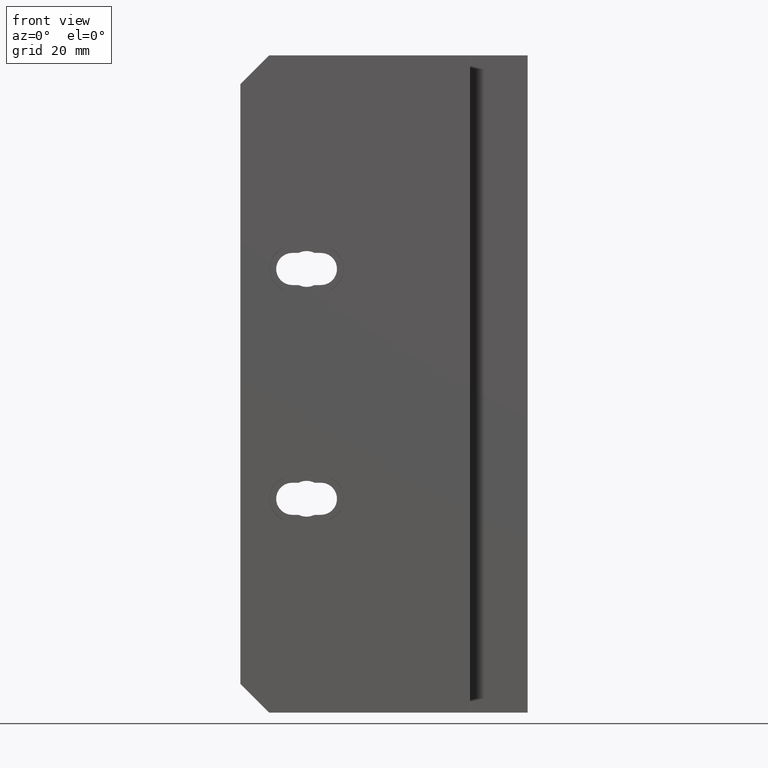
[diagram: clean part render]
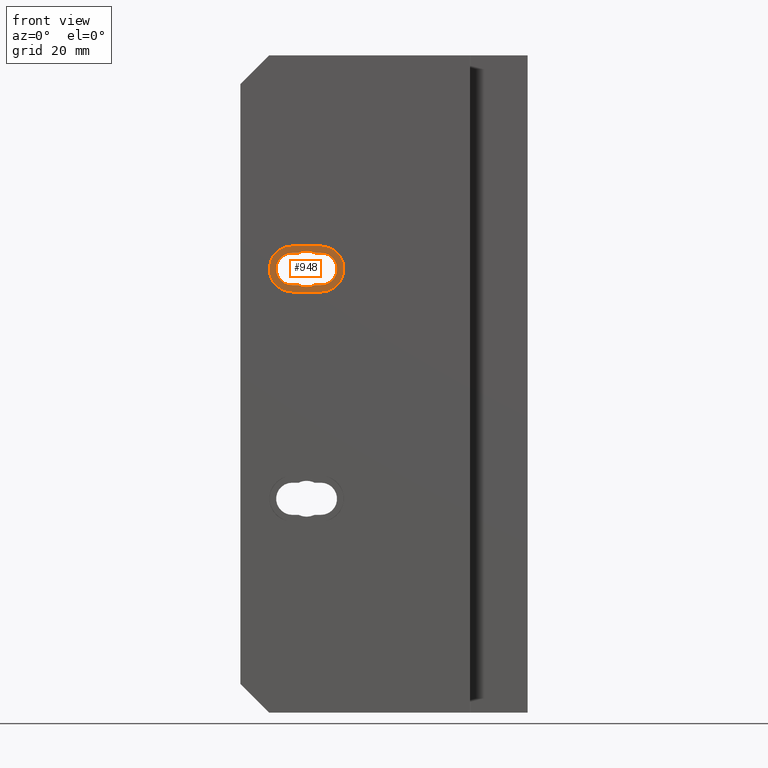
[diagram: same view with one face highlighted and labeled with its STEP entity id]
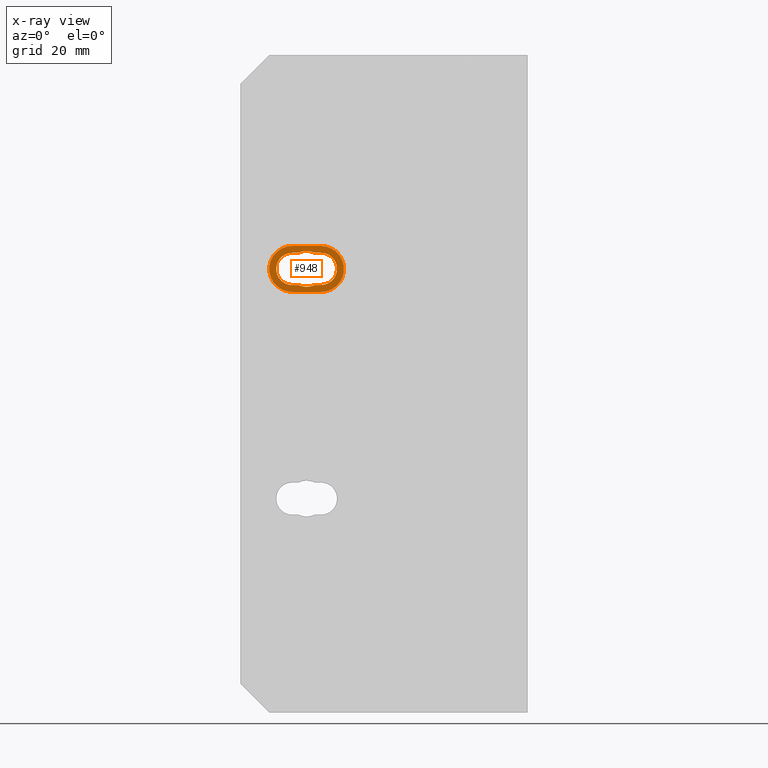
[diagram: x-ray of the same camera — body ghosted, the highlighted face saturated]
A machine part, front view. The second image highlights one B-rep face of the part: STEP entity #948.
The next image is the same camera in x-ray: the body ghosted, the highlighted face saturated — about 0% of this face is hidden behind the body in this view.
In plain terms, the highlighted planar face has unit normal (0, -1, 0).
Its self-contained STEP definition (entity closure, byte-faithful):
#8 = EDGE_CURVE ( 'NONE', #961, #811, #410, .T. ) ;
#10 = LINE ( 'NONE', #654, #2651 ) ;
#38 = CARTESIAN_POINT ( 'NONE',  ( -2.048734939028663800, 0.7000000000000000700, -1.718999999999444700 ) ) ;
#39 = ORIENTED_EDGE ( 'NONE', *, *, #1181, .F. ) ;
#41 = DIRECTION ( 'NONE',  ( 0.0000000000000000000, -0.0000000000000000000, -1.000000000000000000 ) ) ;
#71 = DIRECTION ( 'NONE',  ( 0.0000000000000000000, 0.0000000000000000000, -1.000000000000000000 ) ) ;
#92 = CARTESIAN_POINT ( 'NONE',  ( -2.048734939028663800, 0.7000000000000000700, -1.998999999999445000 ) ) ;
#123 = AXIS2_PLACEMENT_3D ( 'NONE', #468, #2784, #789 ) ;
#165 = ORIENTED_EDGE ( 'NONE', *, *, #1259, .T. ) ;
#188 = DIRECTION ( 'NONE',  ( 0.0000000000000000000, 0.0000000000000000000, -1.000000000000000000 ) ) ;
#195 = DIRECTION ( 'NONE',  ( -1.000000000000000000, -0.0000000000000000000, -0.0000000000000000000 ) ) ;
#228 = EDGE_CURVE ( 'NONE', #811, #573, #1744, .T. ) ;
#257 = EDGE_CURVE ( 'NONE', #1636, #3344, #1637, .T. ) ;
#298 = CIRCLE ( 'NONE', #123, 0.2000000000000000400 ) ;
#304 = CARTESIAN_POINT ( 'NONE',  ( -2.048734939028663800, 0.7000000000000000700, -1.858999999999444900 ) ) ;
#383 = CARTESIAN_POINT ( 'NONE',  ( -2.048734939028663800, 0.7000000000000000700, -1.998999999999445000 ) ) ;
#410 = CIRCLE ( 'NONE', #3331, 0.1562499999999997200 ) ;
#440 = DIRECTION ( 'NONE',  ( -0.0000000000000000000, 1.000000000000000000, -0.0000000000000000000 ) ) ;
#468 = CARTESIAN_POINT ( 'NONE',  ( -1.798734939028664200, 0.7000000000000000700, -1.858999999999444900 ) ) ;
#555 = AXIS2_PLACEMENT_3D ( 'NONE', #4159, #2152, #188 ) ;
#573 = VERTEX_POINT ( 'NONE', #3737 ) ;
#595 = CARTESIAN_POINT ( 'NONE',  ( -1.923734939028664000, 0.7000000000000000700, -1.858999999999444900 ) ) ;
#629 = LINE ( 'NONE', #38, #4042 ) ;
#637 = DIRECTION ( 'NONE',  ( 0.0000000000000000000, 0.0000000000000000000, -1.000000000000000000 ) ) ;
#654 = CARTESIAN_POINT ( 'NONE',  ( -2.048734939028663800, 0.7000000000000000700, -1.998999999999445000 ) ) ;
#789 = DIRECTION ( 'NONE',  ( 0.0000000000000000000, 0.0000000000000000000, -1.000000000000000000 ) ) ;
#811 = VERTEX_POINT ( 'NONE', #1301 ) ;
#854 = AXIS2_PLACEMENT_3D ( 'NONE', #1513, #3839, #1845 ) ;
#903 = DIRECTION ( 'NONE',  ( 1.000000000000000000, 0.0000000000000000000, 0.0000000000000000000 ) ) ;
#948 = ADVANCED_FACE ( 'NONE', ( #1629, #3404 ), #4006, .T. ) ;
#959 = DIRECTION ( 'NONE',  ( 1.000000000000000000, 0.0000000000000000000, 0.0000000000000000000 ) ) ;
#961 = VERTEX_POINT ( 'NONE', #2696 ) ;
#990 = AXIS2_PLACEMENT_3D ( 'NONE', #2411, #440, #2751 ) ;
#1019 = VERTEX_POINT ( 'NONE', #92 ) ;
#1128 = DIRECTION ( 'NONE',  ( 0.0000000000000000000, 0.0000000000000000000, -1.000000000000000000 ) ) ;
#1173 = ORIENTED_EDGE ( 'NONE', *, *, #1912, .T. ) ;
#1181 = EDGE_CURVE ( 'NONE', #1590, #1597, #3862, .T. ) ;
#1259 = EDGE_CURVE ( 'NONE', #2505, #573, #1789, .T. ) ;
#1301 = CARTESIAN_POINT ( 'NONE',  ( -1.923734939028664000, 0.7000000000000000700, -1.702749999999445100 ) ) ;
#1348 = EDGE_LOOP ( 'NONE', ( #3869, #3861, #1764, #3671, #39, #1173, #1591, #165, #1751 ) ) ;
#1355 = LINE ( 'NONE', #2938, #3015 ) ;
#1359 = CARTESIAN_POINT ( 'NONE',  ( -2.048734939028663800, 0.7000000000000000700, -1.858999999999444900 ) ) ;
#1377 = EDGE_CURVE ( 'NONE', #3161, #1636, #298, .T. ) ;
#1469 = EDGE_CURVE ( 'NONE', #1019, #2505, #3511, .T. ) ;
#1472 = DIRECTION ( 'NONE',  ( 0.0000000000000000000, -1.000000000000000000, 0.0000000000000000000 ) ) ;
#1474 = CARTESIAN_POINT ( 'NONE',  ( -1.798734939028664200, 0.7000000000000000700, -1.998999999999445000 ) ) ;
#1513 = CARTESIAN_POINT ( 'NONE',  ( -1.923734939028664000, 0.7000000000000000700, -1.858999999999444900 ) ) ;
#1562 = CARTESIAN_POINT ( 'NONE',  ( -1.993118384460552500, 0.7000000000000000700, -1.998999999999445000 ) ) ;
#1584 = ORIENTED_EDGE ( 'NONE', *, *, #2349, .T. ) ;
#1590 = VERTEX_POINT ( 'NONE', #1562 ) ;
#1591 = ORIENTED_EDGE ( 'NONE', *, *, #1469, .T. ) ;
#1597 = VERTEX_POINT ( 'NONE', #2906 ) ;
#1629 = FACE_BOUND ( 'NONE', #1348, .T. ) ;
#1636 = VERTEX_POINT ( 'NONE', #2276 ) ;
#1637 = LINE ( 'NONE', #2165, #4194 ) ;
#1744 = CIRCLE ( 'NONE', #3772, 0.1562499999999997200 ) ;
#1751 = ORIENTED_EDGE ( 'NONE', *, *, #228, .F. ) ;
#1764 = ORIENTED_EDGE ( 'NONE', *, *, #3444, .T. ) ;
#1789 = LINE ( 'NONE', #2895, #3461 ) ;
#1845 = DIRECTION ( 'NONE',  ( 0.0000000000000000000, 0.0000000000000000000, -1.000000000000000000 ) ) ;
#1912 = EDGE_CURVE ( 'NONE', #1590, #1019, #3032, .T. ) ;
#2017 = DIRECTION ( 'NONE',  ( 0.0000000000000000000, -1.000000000000000000, 0.0000000000000000000 ) ) ;
#2035 = DIRECTION ( 'NONE',  ( 0.0000000000000000000, -1.000000000000000000, 0.0000000000000000000 ) ) ;
#2139 = VECTOR ( 'NONE', #4057, 39.37007874015748100 ) ;
#2152 = DIRECTION ( 'NONE',  ( -0.0000000000000000000, 1.000000000000000000, -0.0000000000000000000 ) ) ;
#2165 = CARTESIAN_POINT ( 'NONE',  ( -2.048734939028663800, 0.7000000000000000700, -1.658999999999444900 ) ) ;
#2167 = ORIENTED_EDGE ( 'NONE', *, *, #3771, .T. ) ;
#2276 = CARTESIAN_POINT ( 'NONE',  ( -1.798734939028664200, 0.7000000000000000700, -1.658999999999444900 ) ) ;
#2348 = CARTESIAN_POINT ( 'NONE',  ( -2.048734939028663800, 0.7000000000000000700, -1.658999999999444900 ) ) ;
#2349 = EDGE_CURVE ( 'NONE', #2642, #3161, #1355, .T. ) ;
#2359 = ORIENTED_EDGE ( 'NONE', *, *, #1377, .T. ) ;
#2411 = CARTESIAN_POINT ( 'NONE',  ( -1.798734939028664200, 0.7000000000000000700, -1.858999999999444900 ) ) ;
#2505 = VERTEX_POINT ( 'NONE', #3712 ) ;
#2617 = DIRECTION ( 'NONE',  ( 0.0000000000000000000, -1.000000000000000000, 0.0000000000000000000 ) ) ;
#2642 = VERTEX_POINT ( 'NONE', #3443 ) ;
#2651 = VECTOR ( 'NONE', #2973, 39.37007874015748100 ) ;
#2686 = DIRECTION ( 'NONE',  ( 1.000000000000000000, 0.0000000000000000000, 0.0000000000000000000 ) ) ;
#2687 = VERTEX_POINT ( 'NONE', #1474 ) ;
#2696 = CARTESIAN_POINT ( 'NONE',  ( -1.854351493596775500, 0.7000000000000000700, -1.718999999999444700 ) ) ;
#2709 = EDGE_LOOP ( 'NONE', ( #2167, #1584, #2359, #3635 ) ) ;
#2751 = DIRECTION ( 'NONE',  ( 0.0000000000000000000, 0.0000000000000000000, -1.000000000000000000 ) ) ;
#2784 = DIRECTION ( 'NONE',  ( 0.0000000000000000000, -1.000000000000000000, 0.0000000000000000000 ) ) ;
#2869 = EDGE_CURVE ( 'NONE', #2687, #1597, #10, .T. ) ;
#2895 = CARTESIAN_POINT ( 'NONE',  ( -2.048734939028663800, 0.7000000000000000700, -1.718999999999444700 ) ) ;
#2906 = CARTESIAN_POINT ( 'NONE',  ( -1.854351493596775500, 0.7000000000000000700, -1.998999999999445000 ) ) ;
#2938 = CARTESIAN_POINT ( 'NONE',  ( -2.048734939028663800, 0.7000000000000000700, -2.058999999999445100 ) ) ;
#2973 = DIRECTION ( 'NONE',  ( -1.000000000000000000, 0.0000000000000000000, 0.0000000000000000000 ) ) ;
#2991 = AXIS2_PLACEMENT_3D ( 'NONE', #304, #2617, #637 ) ;
#3015 = VECTOR ( 'NONE', #959, 39.37007874015748100 ) ;
#3032 = LINE ( 'NONE', #383, #2139 ) ;
#3066 = CIRCLE ( 'NONE', #990, 0.1400000000000001500 ) ;
#3161 = VERTEX_POINT ( 'NONE', #3211 ) ;
#3211 = CARTESIAN_POINT ( 'NONE',  ( -1.798734939028664200, 0.7000000000000000700, -2.058999999999445100 ) ) ;
#3330 = EDGE_CURVE ( 'NONE', #961, #3886, #629, .T. ) ;
#3331 = AXIS2_PLACEMENT_3D ( 'NONE', #4028, #2035, #71 ) ;
#3338 = CARTESIAN_POINT ( 'NONE',  ( -1.798734939028664200, 0.7000000000000000700, -1.718999999999444700 ) ) ;
#3344 = VERTEX_POINT ( 'NONE', #2348 ) ;
#3404 = FACE_OUTER_BOUND ( 'NONE', #2709, .T. ) ;
#3443 = CARTESIAN_POINT ( 'NONE',  ( -2.048734939028663800, 0.7000000000000000700, -2.058999999999445100 ) ) ;
#3444 = EDGE_CURVE ( 'NONE', #3886, #2687, #3066, .T. ) ;
#3461 = VECTOR ( 'NONE', #903, 39.37007874015748100 ) ;
#3511 = CIRCLE ( 'NONE', #555, 0.1400000000000001500 ) ;
#3577 = CIRCLE ( 'NONE', #2991, 0.2000000000000000400 ) ;
#3635 = ORIENTED_EDGE ( 'NONE', *, *, #257, .T. ) ;
#3671 = ORIENTED_EDGE ( 'NONE', *, *, #2869, .T. ) ;
#3712 = CARTESIAN_POINT ( 'NONE',  ( -2.048734939028663800, 0.7000000000000000700, -1.718999999999444700 ) ) ;
#3737 = CARTESIAN_POINT ( 'NONE',  ( -1.993118384460552500, 0.7000000000000000700, -1.718999999999444700 ) ) ;
#3771 = EDGE_CURVE ( 'NONE', #3344, #2642, #3577, .T. ) ;
#3772 = AXIS2_PLACEMENT_3D ( 'NONE', #595, #1472, #1128 ) ;
#3839 = DIRECTION ( 'NONE',  ( 0.0000000000000000000, -1.000000000000000000, 0.0000000000000000000 ) ) ;
#3861 = ORIENTED_EDGE ( 'NONE', *, *, #3330, .T. ) ;
#3862 = CIRCLE ( 'NONE', #854, 0.1562499999999997200 ) ;
#3869 = ORIENTED_EDGE ( 'NONE', *, *, #8, .F. ) ;
#3886 = VERTEX_POINT ( 'NONE', #3338 ) ;
#4006 = PLANE ( 'NONE',  #4048 ) ;
#4028 = CARTESIAN_POINT ( 'NONE',  ( -1.923734939028664000, 0.7000000000000000700, -1.858999999999444900 ) ) ;
#4042 = VECTOR ( 'NONE', #2686, 39.37007874015748100 ) ;
#4048 = AXIS2_PLACEMENT_3D ( 'NONE', #1359, #2017, #41 ) ;
#4057 = DIRECTION ( 'NONE',  ( -1.000000000000000000, 0.0000000000000000000, 0.0000000000000000000 ) ) ;
#4159 = CARTESIAN_POINT ( 'NONE',  ( -2.048734939028663800, 0.7000000000000000700, -1.858999999999444900 ) ) ;
#4194 = VECTOR ( 'NONE', #195, 39.37007874015748100 ) ;